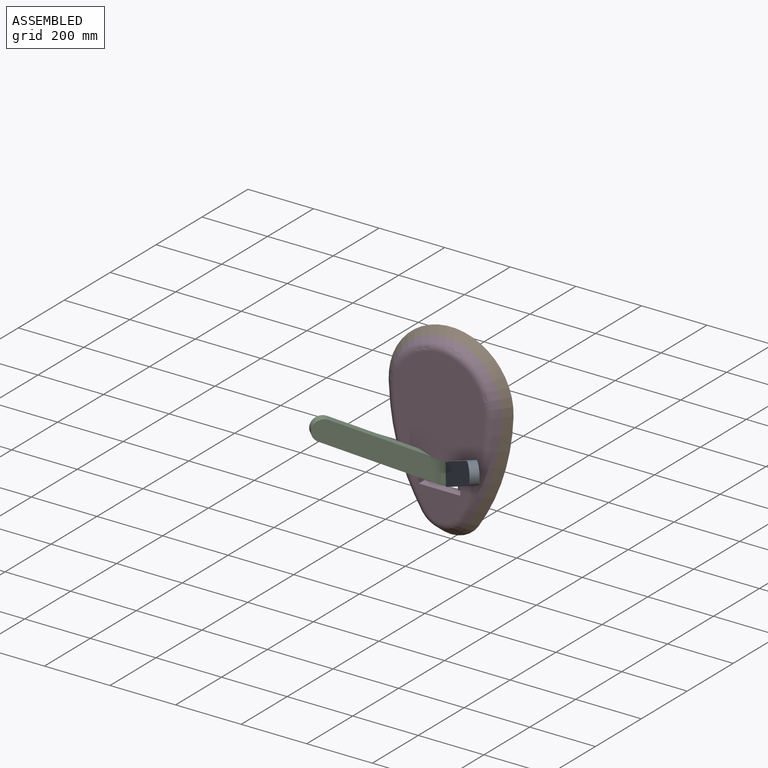
[diagram: assembled view]
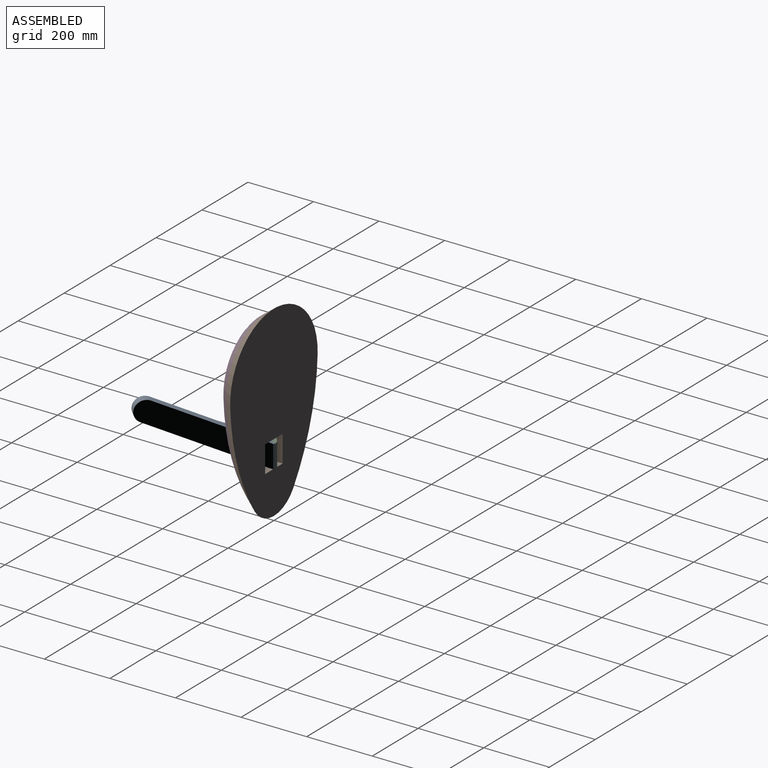
[diagram: assembled view, second angle]
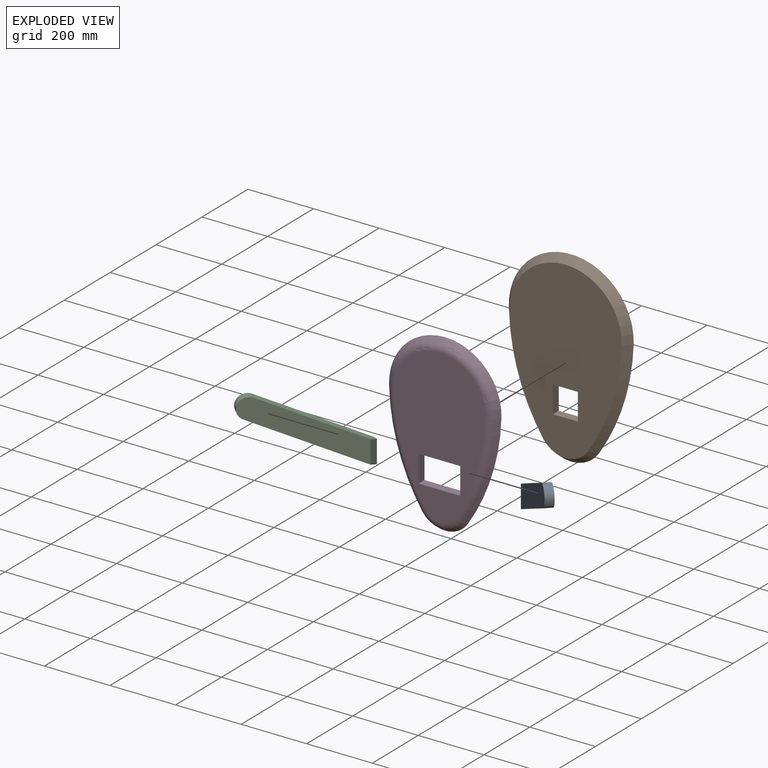
[diagram: exploded view]
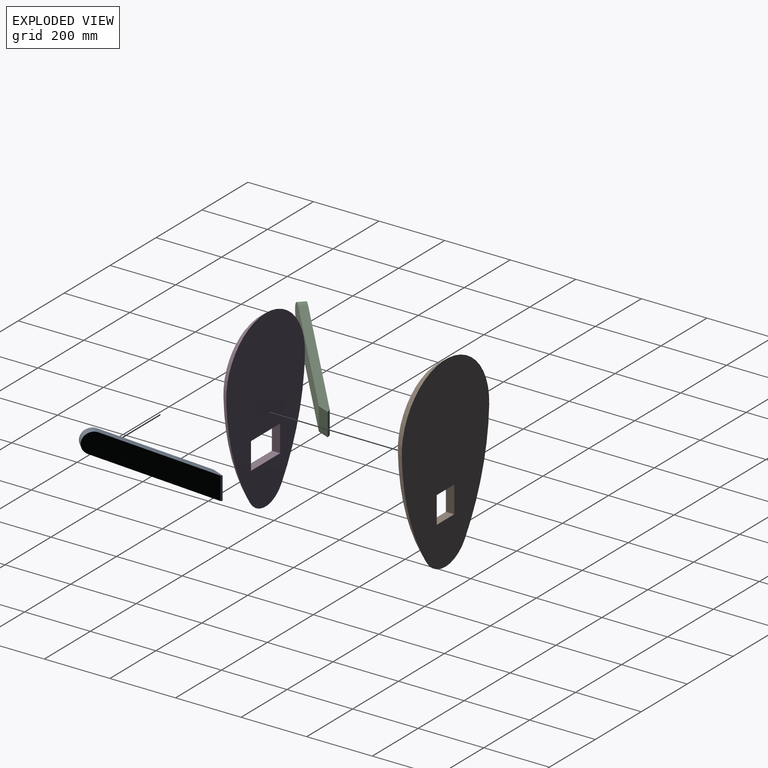
[diagram: exploded view, second angle]
ASSEMBLY  parts=4 mates=2
PART A: 7 faces, bbox 25.4x361.1x220.4 mm
  f0: plane 315.93x147.32mm, normal (0,0.42,0.91), area 8631.8mm2, adj f1,f3,f4,f5,f6
  f1: cylinder r=31.75mm len=60.53mm, axis (-1,0,0), area 2533.5mm2, adj f0,f2,f3,f4
  f2: plane 342.77x159.84mm, normal (0,-0.42,-0.91), area 9383.9mm2, adj f1,f3,f4,f5,f6
  f3: plane 354.75x217.4mm, normal (1,0,0), area 24214.4mm2, adj f0,f1,f2,f5
  f4: plane 342.05x211.48mm, normal (-1,0,0), area 23324.6mm2, adj f0,f1,f2,f6
  f5: plane 73.03x6.35mm, normal (0.71,0.71,0), area 629.2mm2, adj f0,f2,f3,f6
  f6: plane 78.95x19.05mm, normal (-0.71,0.71,0), area 1887.6mm2, adj f0,f2,f4,f5
PART B: 10 faces, bbox 381x25.4x571.5 mm
  f0: plane 533.4x342.9mm, normal (0,-1,0), area 132592.5mm2, adj f1,f2,f3,f4,f6,f7,f8,f9
  f1: plane 81.91x25.4mm, normal (1,0,0), area 2080.5mm2, adj f0,f2,f4,f5
  f2: plane 76.2x25.4mm, normal (0,0,-1), area 1935.5mm2, adj f0,f1,f3,f5
  f3: plane 81.91x25.4mm, normal (-1,0,0), area 2080.5mm2, adj f0,f2,f4,f5
  f4: plane 76.2x25.4mm, normal (0,0,1), area 1935.5mm2, adj f0,f1,f3,f5
  f5: plane 571.5x381mm, normal (0,1,0), area 160251mm2, adj f1,f2,f3,f4,f6,f7,f8,f9
  f6: cone r=635mm half-angle=36.9deg, axis (0,1,0), area 10940.7mm2, adj f0,f5,f7,f9
  f7: cone r=190.5mm half-angle=36.9deg, axis (0,1,0), area 18462mm2, adj f0,f5,f6,f8
  f8: cone r=635mm half-angle=36.9deg, axis (0,1,0), area 10940.7mm2, adj f0,f5,f7,f9
  f9: cone r=101.6mm half-angle=36.9deg, axis (0,1,0), area 5754.1mm2, adj f0,f5,f6,f8
PART C: 7 faces, bbox 25.4x361.1x220.4 mm
  f0: plane 315.93x147.32mm, normal (0,0.42,0.91), area 8631.8mm2, adj f1,f3,f4,f5,f6
  f1: cylinder r=31.75mm len=60.53mm, axis (1,0,0), area 2533.5mm2, adj f0,f2,f3,f4
  f2: plane 342.77x159.84mm, normal (0,-0.42,-0.91), area 9383.9mm2, adj f1,f3,f4,f5,f6
  f3: plane 354.75x217.4mm, normal (-1,0,0), area 24214.4mm2, adj f0,f1,f2,f5
  f4: plane 342.05x211.48mm, normal (1,0,0), area 23324.6mm2, adj f0,f1,f2,f6
  f5: plane 73.03x6.35mm, normal (-0.71,0.71,0), area 629.2mm2, adj f0,f2,f3,f6
  f6: plane 78.95x19.05mm, normal (0.71,0.71,0), area 1887.6mm2, adj f0,f2,f4,f5
PART D: 14 faces, bbox 430.4x25.4x540.7 mm
  f0: plane 469.9x279.4mm, normal (0,-1,0), area 87401.1mm2, adj f2,f3,f4,f5,f10,f11,f12,f13
  f1: plane 533.4x342.9mm, normal (0,1,0), area 128431.5mm2, adj f2,f3,f4,f5,f6,f7,f8,f9
  f2: plane 81.91x25.4mm, normal (-1,0,0), area 2080.5mm2, adj f0,f1,f3,f5
  f3: plane 127x25.4mm, normal (0,0,1), area 3225.8mm2, adj f0,f1,f2,f4
  f4: plane 81.91x25.4mm, normal (1,0,0), area 2080.5mm2, adj f0,f1,f3,f5
  f5: plane 127x25.4mm, normal (0,0,-1), area 3225.8mm2, adj f0,f1,f2,f4
  f6: cone r=635mm half-angle=36.9deg, axis (0,1,0), area 6404.5mm2, adj f1,f7,f9,f13
  f7: cone r=190.5mm half-angle=36.9deg, axis (0,1,0), area 10144.4mm2, adj f1,f6,f8,f11
  f8: cone r=635mm half-angle=36.9deg, axis (0,1,0), area 6404.5mm2, adj f1,f7,f9,f10
  f9: cone r=101.6mm half-angle=36.9deg, axis (0,1,0), area 2881mm2, adj f1,f6,f8,f12
  f10: torus R=584.2mm, axis (0,-1,0), area 7722.8mm2, adj f0,f8,f11,f12
  f11: torus R=139.7mm, axis (0,-1,0), area 11401.3mm2, adj f0,f7,f10,f13
  f12: torus R=50.8mm, axis (0,-1,0), area 2863mm2, adj f0,f9,f10,f13
  f13: torus R=584.2mm, axis (0,-1,0), area 7722.8mm2, adj f0,f6,f11,f12
PLACE A rot(axis=(0,0,1),45deg) t=(-162.27,157.01,-311.73)mm
PLACE B t=(0,0,-207.59)mm
PLACE C rot(axis=(0,0,-1),45deg) t=(216.15,103.13,-311.73)mm
PLACE D t=(0,0,-207.59)mm
MATE fastened C.f6 <-> A.f6  axis (1,0,0) through (0,-9.75,-139.74)mm
MATE fastened B.f7 <-> D.f7  axis (0,-1,0) through (0,-25.4,71.81)mm
